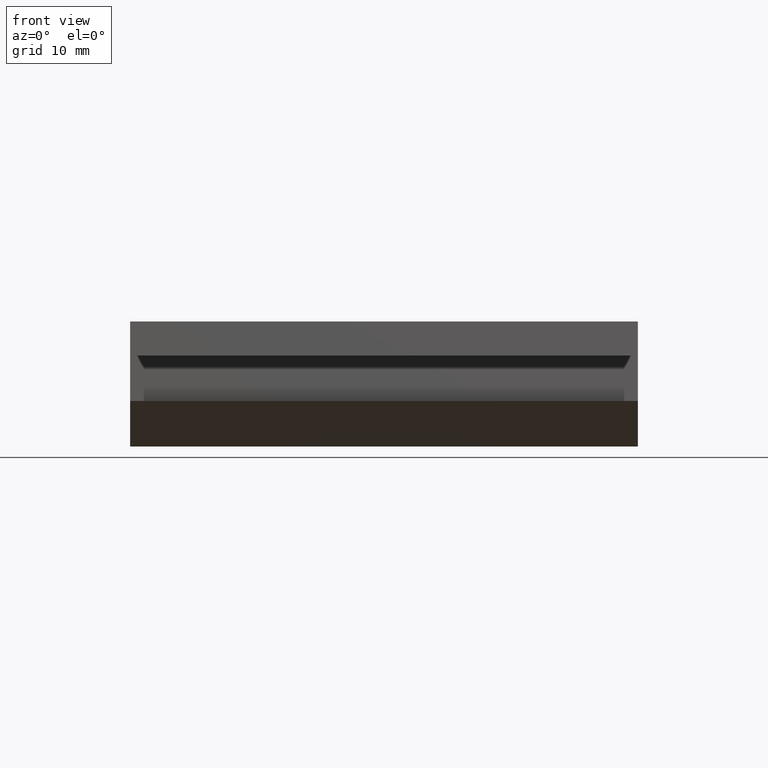
[diagram: clean part render]
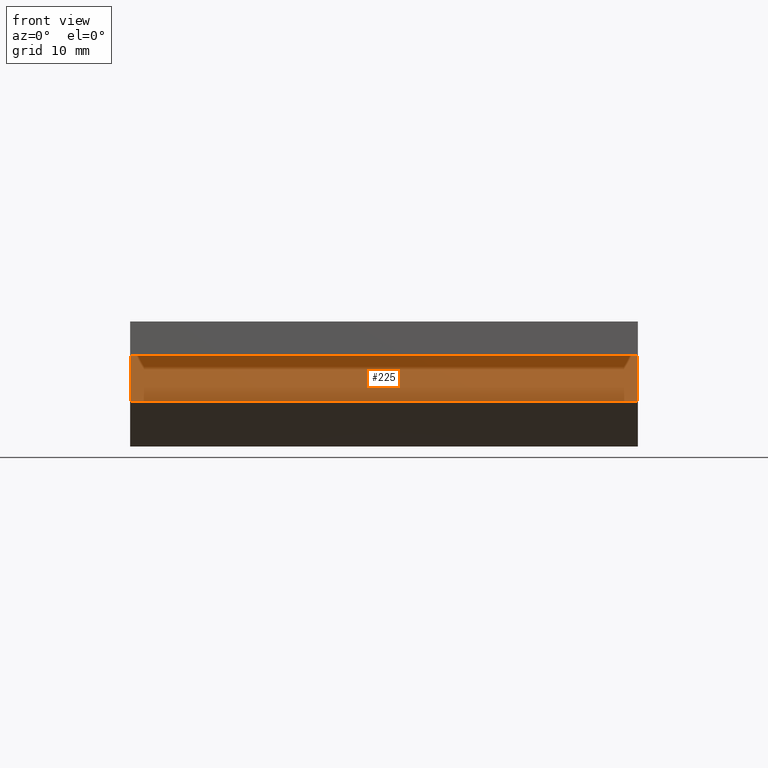
[diagram: same view with one face highlighted and labeled with its STEP entity id]
A machine part, front view. The second image highlights one B-rep face of the part: STEP entity #225.
In plain terms, the highlighted planar face has unit normal (0, 1, -0).
Its self-contained STEP definition (entity closure, byte-faithful):
#5 = ORIENTED_EDGE ( 'NONE', *, *, #209, .T. ) ;
#57 = VERTEX_POINT ( 'NONE', #501 ) ;
#58 = ORIENTED_EDGE ( 'NONE', *, *, #59, .F. ) ;
#59 = EDGE_CURVE ( 'NONE', #60, #57, #441, .T. ) ;
#60 = VERTEX_POINT ( 'NONE', #437 ) ;
#61 = ORIENTED_EDGE ( 'NONE', *, *, #62, .F. ) ;
#62 = EDGE_CURVE ( 'NONE', #221, #60, #436, .T. ) ;
#209 = EDGE_CURVE ( 'NONE', #221, #256, #389, .T. ) ;
#221 = VERTEX_POINT ( 'NONE', #363 ) ;
#225 = ADVANCED_FACE ( 'NONE', ( #358 ), #357, .F. ) ;
#226 = EDGE_LOOP ( 'NONE', ( #227, #58, #61, #5 ) ) ;
#227 = ORIENTED_EDGE ( 'NONE', *, *, #313, .T. ) ;
#256 = VERTEX_POINT ( 'NONE', #569 ) ;
#313 = EDGE_CURVE ( 'NONE', #256, #57, #653, .T. ) ;
#352 = DIRECTION ( 'NONE',  ( 0.0000000000000000000, 4.336808689942014800E-016, 1.000000000000000000 ) ) ;
#353 = DIRECTION ( 'NONE',  ( 0.0000000000000000000, 1.000000000000000000, -4.336808689942014800E-016 ) ) ;
#355 = CARTESIAN_POINT ( 'NONE',  ( 44.66704193895279200, -4.000000000000000000, -3.000000000000000000 ) ) ;
#356 = AXIS2_PLACEMENT_3D ( 'NONE', #355, #353, #352 ) ;
#357 = PLANE ( 'NONE',  #356 ) ;
#358 = FACE_OUTER_BOUND ( 'NONE', #226, .T. ) ;
#363 = CARTESIAN_POINT ( 'NONE',  ( 44.66704193895279200, -4.000000000000000000, -3.000000000000000000 ) ) ;
#386 = DIRECTION ( 'NONE',  ( -1.000000000000000000, -0.0000000000000000000, -0.0000000000000000000 ) ) ;
#387 = VECTOR ( 'NONE', #386, 1000.000000000000000 ) ;
#388 = CARTESIAN_POINT ( 'NONE',  ( 44.66704193895279200, -4.000000000000000000, -3.000000000000000000 ) ) ;
#389 = LINE ( 'NONE', #388, #387 ) ;
#433 = DIRECTION ( 'NONE',  ( 0.0000000000000000000, -4.336808689942014800E-016, -1.000000000000000000 ) ) ;
#434 = VECTOR ( 'NONE', #433, 1000.000000000000000 ) ;
#435 = CARTESIAN_POINT ( 'NONE',  ( 44.66704193895279200, -4.000000000000000000, -3.000000000000000000 ) ) ;
#436 = LINE ( 'NONE', #435, #434 ) ;
#437 = CARTESIAN_POINT ( 'NONE',  ( 44.66704193895279200, -4.000000000000001800, -7.000000000000002700 ) ) ;
#438 = DIRECTION ( 'NONE',  ( -1.000000000000000000, -0.0000000000000000000, -0.0000000000000000000 ) ) ;
#439 = VECTOR ( 'NONE', #438, 1000.000000000000000 ) ;
#440 = CARTESIAN_POINT ( 'NONE',  ( 44.66704193895279200, -4.000000000000001800, -7.000000000000002700 ) ) ;
#441 = LINE ( 'NONE', #440, #439 ) ;
#501 = CARTESIAN_POINT ( 'NONE',  ( 0.0000000000000000000, -4.000000000000001800, -7.000000000000002700 ) ) ;
#569 = CARTESIAN_POINT ( 'NONE',  ( 0.0000000000000000000, -4.000000000000000000, -3.000000000000000000 ) ) ;
#584 = DIRECTION ( 'NONE',  ( 0.0000000000000000000, -4.336808689942014800E-016, -1.000000000000000000 ) ) ;
#585 = VECTOR ( 'NONE', #584, 1000.000000000000000 ) ;
#586 = CARTESIAN_POINT ( 'NONE',  ( 0.0000000000000000000, -4.000000000000000000, -3.000000000000000000 ) ) ;
#653 = LINE ( 'NONE', #586, #585 ) ;